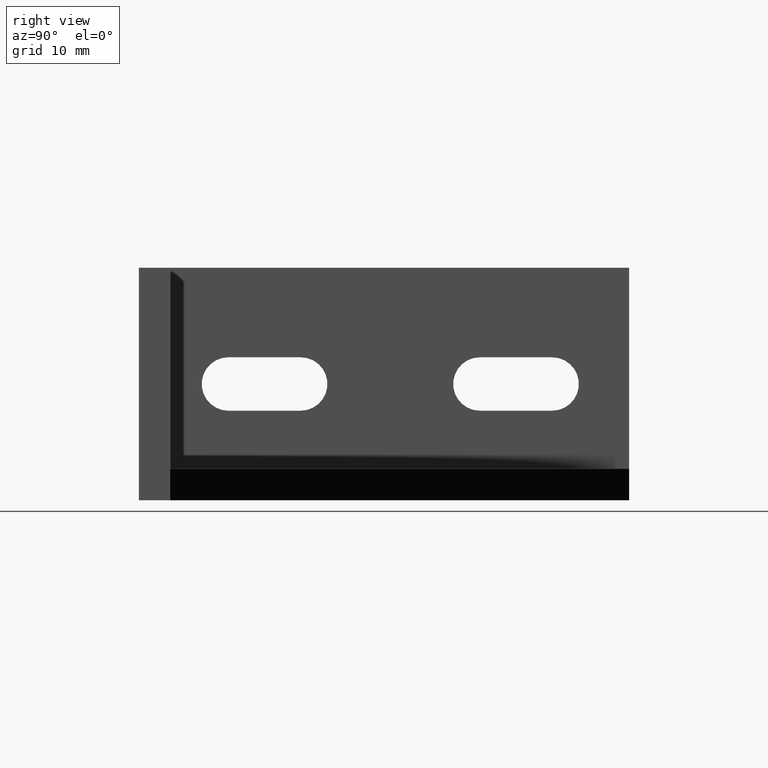
[diagram: clean part render]
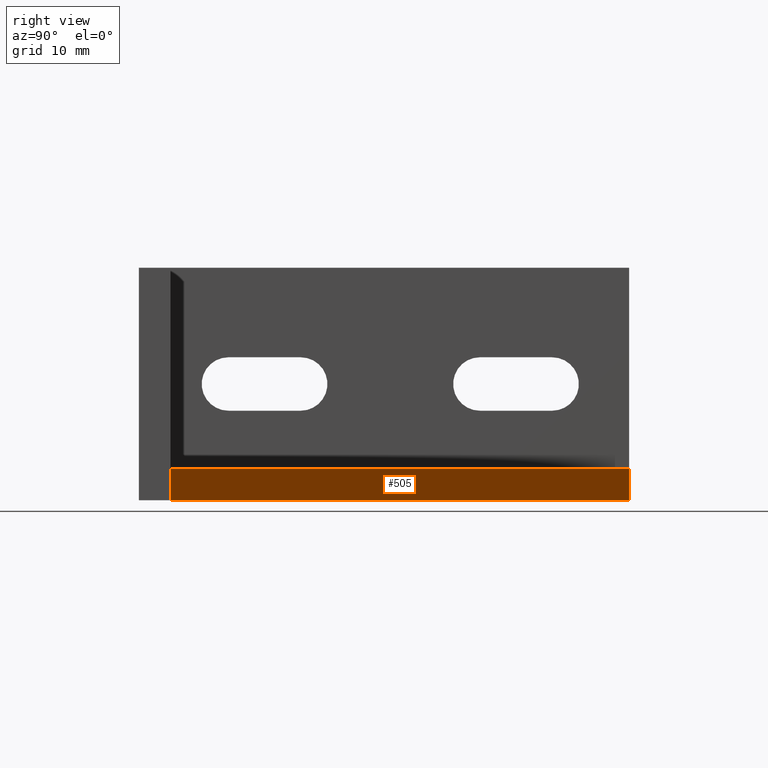
[diagram: same view with one face highlighted and labeled with its STEP entity id]
A machine part, right view. The second image highlights one B-rep face of the part: STEP entity #505.
In plain terms, the highlighted planar face has unit normal (0.7071, 0.7071, 0).
Its self-contained STEP definition (entity closure, byte-faithful):
#31=PLANE('',#567);
#57=FACE_OUTER_BOUND('',#83,.T.);
#83=EDGE_LOOP('',(#405,#406,#407,#408));
#133=LINE('',#817,#187);
#134=LINE('',#819,#188);
#135=LINE('',#821,#189);
#136=LINE('',#822,#190);
#187=VECTOR('',#677,10.);
#188=VECTOR('',#678,10.);
#189=VECTOR('',#679,10.);
#190=VECTOR('',#680,10.);
#257=VERTEX_POINT('',#815);
#258=VERTEX_POINT('',#816);
#259=VERTEX_POINT('',#818);
#260=VERTEX_POINT('',#820);
#319=EDGE_CURVE('',#257,#258,#133,.T.);
#320=EDGE_CURVE('',#258,#259,#134,.T.);
#321=EDGE_CURVE('',#260,#259,#135,.T.);
#322=EDGE_CURVE('',#257,#260,#136,.T.);
#405=ORIENTED_EDGE('',*,*,#319,.T.);
#406=ORIENTED_EDGE('',*,*,#320,.T.);
#407=ORIENTED_EDGE('',*,*,#321,.F.);
#408=ORIENTED_EDGE('',*,*,#322,.F.);
#505=ADVANCED_FACE('',(#57),#31,.T.);
#567=AXIS2_PLACEMENT_3D('',#814,#675,#676);
#675=DIRECTION('center_axis',(0.707106781186548,0.707106781186548,0.));
#676=DIRECTION('ref_axis',(-0.707106781186548,0.707106781186548,0.));
#677=DIRECTION('',(-0.707106781186548,0.707106781186548,0.));
#678=DIRECTION('',(0.,0.,1.));
#679=DIRECTION('',(-0.707106781186548,0.707106781186548,0.));
#680=DIRECTION('',(0.,0.,1.));
#814=CARTESIAN_POINT('Origin',(78.,5.,-18.5));
#815=CARTESIAN_POINT('',(78.,5.,-18.5));
#816=CARTESIAN_POINT('',(5.,78.,-18.5));
#817=CARTESIAN_POINT('',(78.,5.,-18.5));
#818=CARTESIAN_POINT('',(5.,78.,-13.5));
#819=CARTESIAN_POINT('',(5.,78.,0.));
#820=CARTESIAN_POINT('',(78.,5.,-13.5));
#821=CARTESIAN_POINT('',(78.,5.,-13.5));
#822=CARTESIAN_POINT('',(78.,5.,0.));